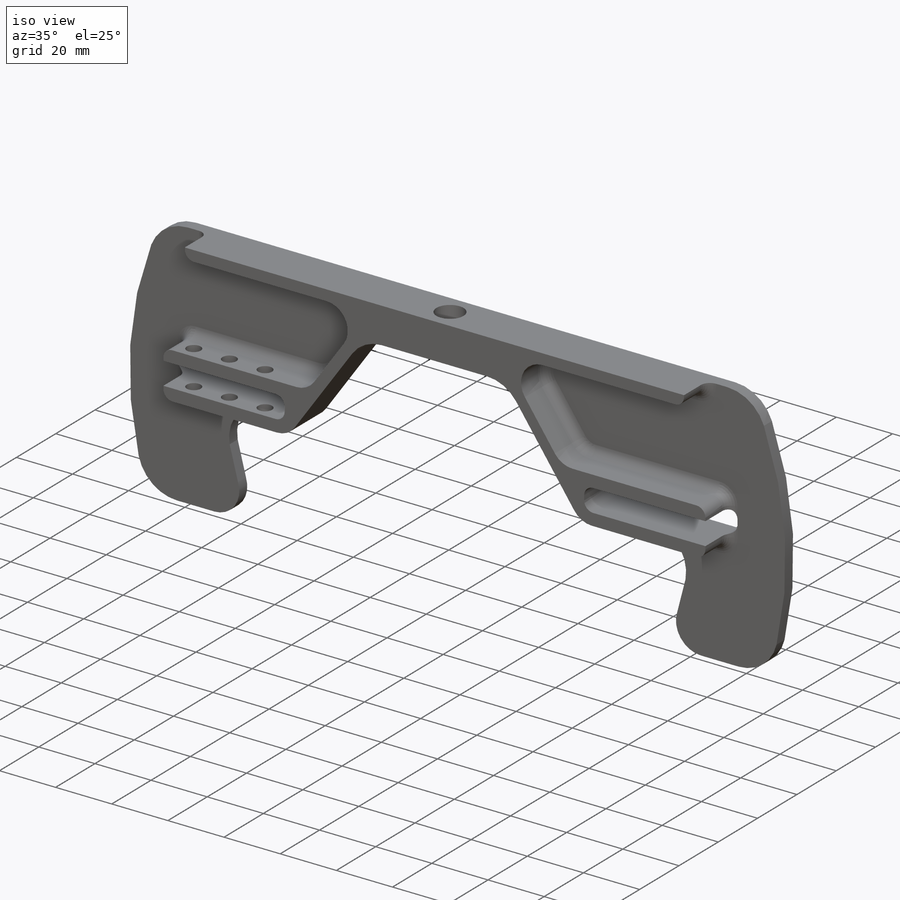
[diagram: iso view]
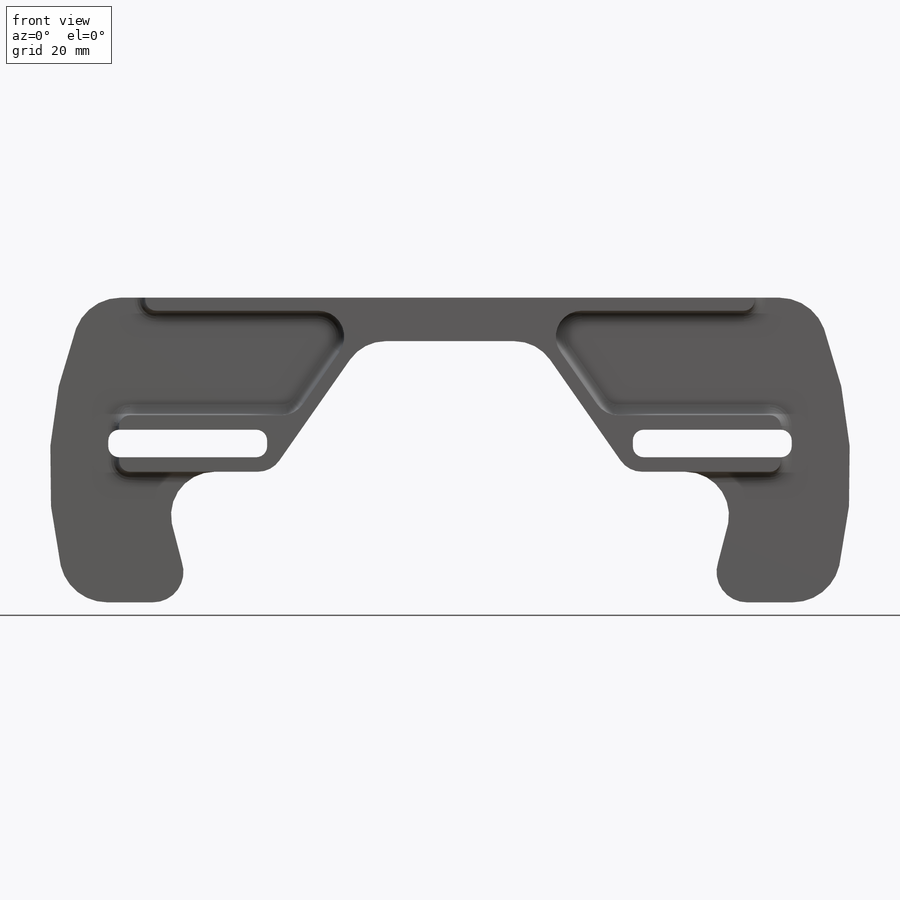
[diagram: front view]
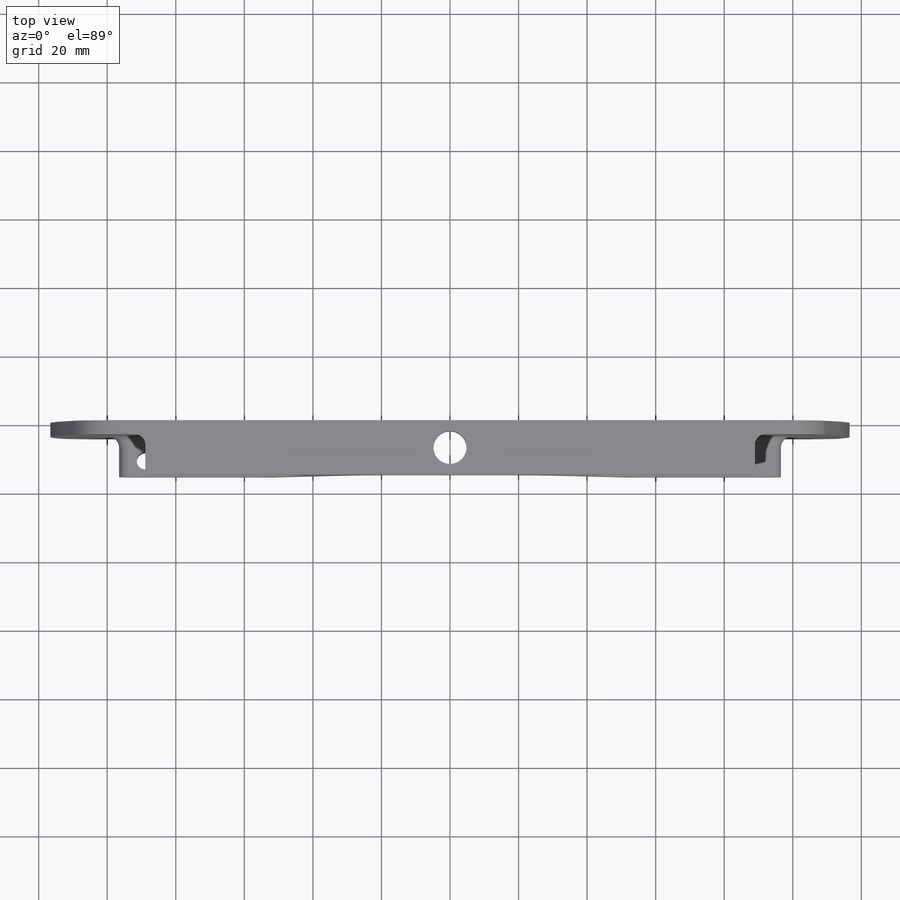
[diagram: top view]
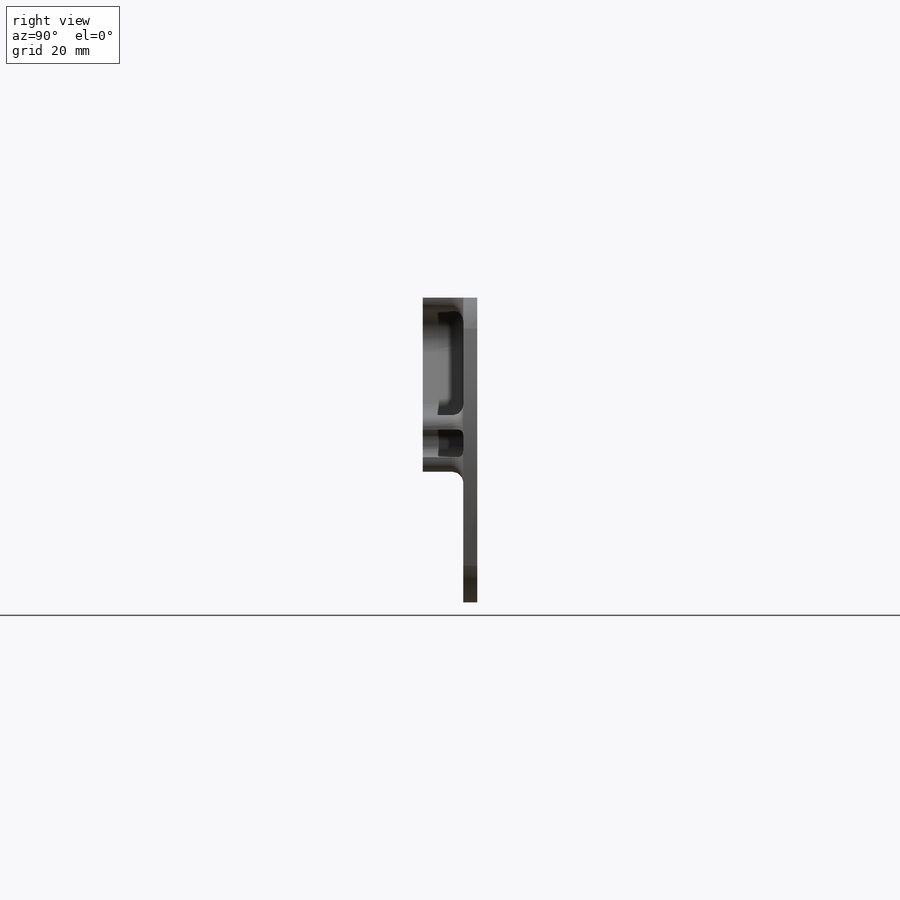
[diagram: right view]
SOLIDWORKS PART (.sldprt)
format: sldprt  version: not decoded by parser v0  size: 516,608 bytes
history: native  units: mm
features: sketch x9, fillet x7, extrude x4, cut_extrude x4, material x1 (+11 scaffold rows collapsed)
feature tree (36):
  scaffold x11  (default folders/planes/origin — collapsed)
  material  "6061-T6 (SS)"
  sketch  "Outline"  dims[D1=254.0mm D2=233.68mm D7=152.4mm D3=50.8mm D4=38.1mm D5=38.1mm D6=16.51mm D8=279.4mm D9=63.5mm D10=12.7mm D11=12.7mm]
  sketch  "Sketch"
  extrude  "Pad"  Depth=4.064mm
  sketch  "Sketch1"  dims[c1.D1=152.4mm c1.D2=152.4mm c2.D1=177.8mm c2.D2=3.81mm]
  extrude  "Upper Bar"  Depth=15.875mm
  sketch  "Sketch2"  dims[c1.D1=50.8mm c1.D2=~46.170139mm c2.D2=125.0deg c2.D1=25.4mm c2.D3=3.81mm c2.D4=96.52mm]
  extrude  "Lower Bar"  Depth=15.875mm
  sketch  "Sketch4"  dims[D1=8.255mm D2=53.34mm D3=46.355mm D4=8.0264mm]
  cut_extrude  "Cut Lower Bar"  [1 undecoded]
  fillet  "Fillet1"  Radius=13.97mm
  sketch  "Sketch5"
  extrude  "Boss-Extrude4"  Depth=4.064mm
  sketch  "Sketch6"  dims[D1=165.1mm]
  cut_extrude  "Cut-Extrude2"  Depth=4.572mm
  fillet  "Fillet3"  Radius=8.89mm
  fillet  "Fillet4"  Radius=12.7mm
  fillet  "Fillet5"  Radius=7.62mm
  fillet  "Fillet6"  Radius=3.175mm
  fillet  "Fillet7"  Radius=7.62mm
  fillet  "Fillet9"  Radius=3.175mm
  sketch  "Sketch9"  dims[D6=4.9784mm D1=63.5mm D2=12.7mm D3=12.7mm D4=4.572mm D5=16.51mm]
  cut_extrude  "Three Holes"  [1 undecoded]
  sketch  "Sketch14"  dims[D1=9.6774mm]
  cut_extrude  "Big Hole"  [1 undecoded]
decode coverage: 19 of 24 modeling features carry decoded parameters
note: ~ marks probable driven/reference dimensions
note: 3 parameter values undecoded
summary: no parameter record found for 3 features
note: suppression state not decoded; provenance and decode notes live in map.json
